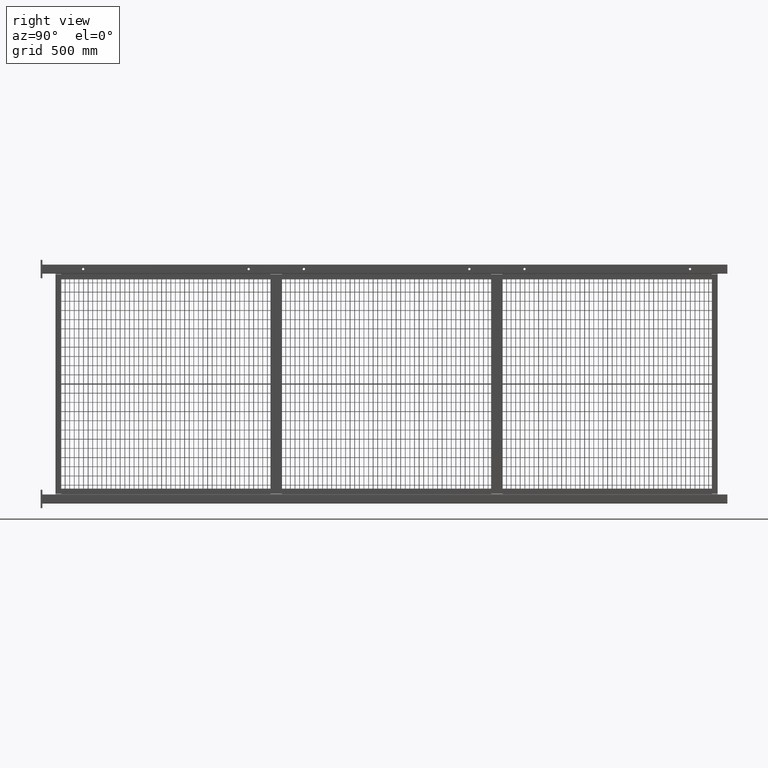
[diagram: clean part render]
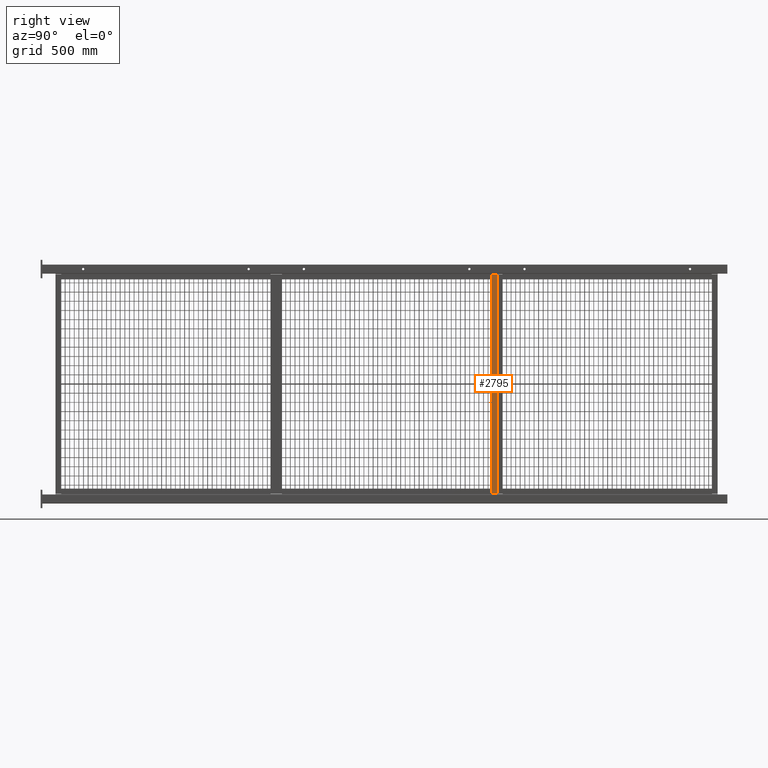
[diagram: same view with one face highlighted and labeled with its STEP entity id]
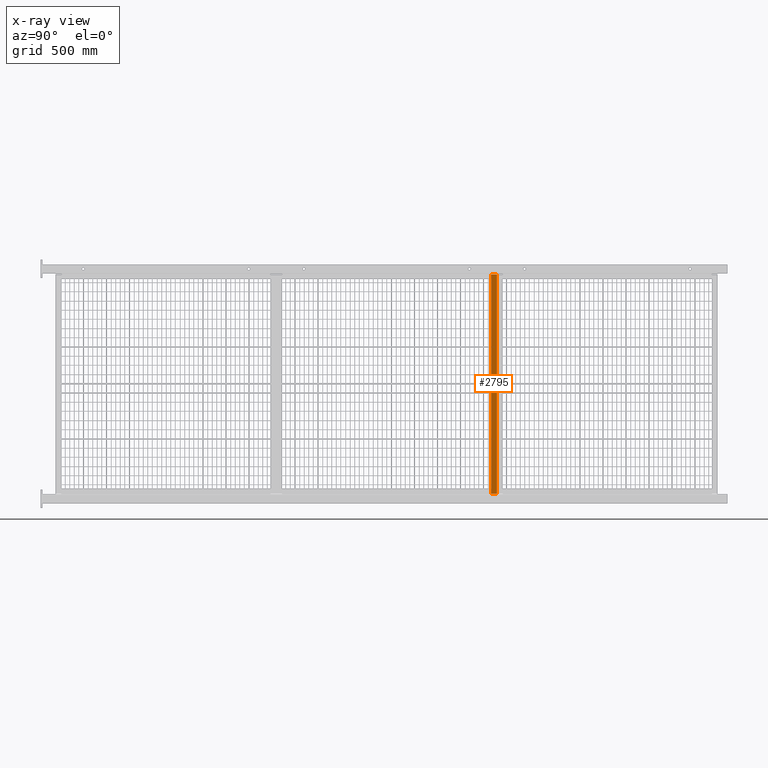
[diagram: x-ray of the same camera — body ghosted, the highlighted face saturated]
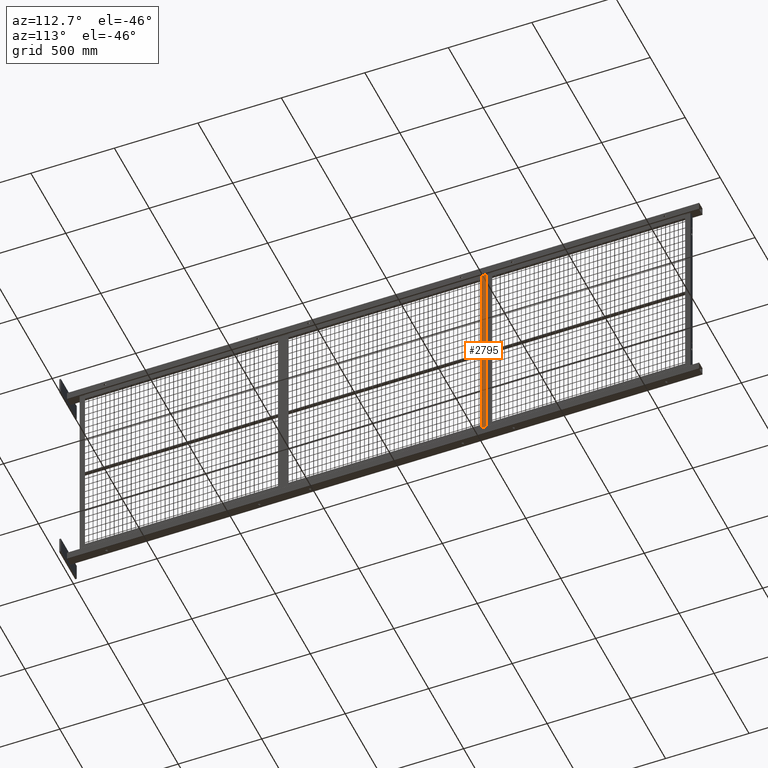
[diagram: same view with one face highlighted and labeled with its STEP entity id]
A machine part, right view. The second image highlights one B-rep face of the part: STEP entity #2795.
The next image is the same camera in x-ray: the body ghosted, the highlighted face saturated — about 0% of this face is hidden behind the body in this view.
A second angle (auxiliary view) of the same face is appended — the face is thin or edge-on in the first view.
In plain terms, the highlighted planar face has unit normal (1, 0, -0).
Its self-contained STEP definition (entity closure, byte-faithful):
#2618=CARTESIAN_POINT('',(0.0,0.0,-23.812500000000000));
#2619=VERTEX_POINT('',#2618);
#2626=CARTESIAN_POINT('',(-1.250000000000000,0.0,-23.812500000000000));
#2627=VERTEX_POINT('',#2626);
#2628=CARTESIAN_POINT('',(-1.250000000000000,0.0,-23.812500000000000));
#2629=DIRECTION('',(1.0,0.0,0.0));
#2630=VECTOR('',#2629,1.250000000000000);
#2631=LINE('',#2628,#2630);
#2632=EDGE_CURVE('',#2627,#2619,#2631,.T.);
#2729=CARTESIAN_POINT('',(0.0,0.0,23.812500000000000));
#2730=VERTEX_POINT('',#2729);
#2737=CARTESIAN_POINT('',(0.0,0.0,23.812500000000000));
#2738=DIRECTION('',(0.0,0.0,-1.0));
#2739=VECTOR('',#2738,47.625000000000000);
#2740=LINE('',#2737,#2739);
#2741=EDGE_CURVE('',#2730,#2619,#2740,.T.);
#2772=CARTESIAN_POINT('',(0.0,0.0,0.0));
#2773=DIRECTION('',(0.0,-1.0,0.0));
#2774=DIRECTION('',(0.0,0.0,-1.0));
#2775=AXIS2_PLACEMENT_3D('',#2772,#2773,#2774);
#2776=PLANE('',#2775);
#2777=CARTESIAN_POINT('',(-1.250000000000000,0.0,23.812500000000000));
#2778=VERTEX_POINT('',#2777);
#2779=CARTESIAN_POINT('',(0.0,0.0,23.812500000000000));
#2780=DIRECTION('',(-1.0,0.0,0.0));
#2781=VECTOR('',#2780,1.250000000000000);
#2782=LINE('',#2779,#2781);
#2783=EDGE_CURVE('',#2730,#2778,#2782,.T.);
#2784=ORIENTED_EDGE('',*,*,#2783,.T.);
#2785=CARTESIAN_POINT('',(-1.250000000000000,0.0,23.812500000000000));
#2786=DIRECTION('',(0.0,0.0,-1.0));
#2787=VECTOR('',#2786,47.625000000000000);
#2788=LINE('',#2785,#2787);
#2789=EDGE_CURVE('',#2778,#2627,#2788,.T.);
#2790=ORIENTED_EDGE('',*,*,#2789,.T.);
#2791=ORIENTED_EDGE('',*,*,#2632,.T.);
#2792=ORIENTED_EDGE('',*,*,#2741,.F.);
#2793=EDGE_LOOP('',(#2784,#2790,#2791,#2792));
#2794=FACE_OUTER_BOUND('',#2793,.T.);
#2795=ADVANCED_FACE('',(#2794),#2776,.T.);